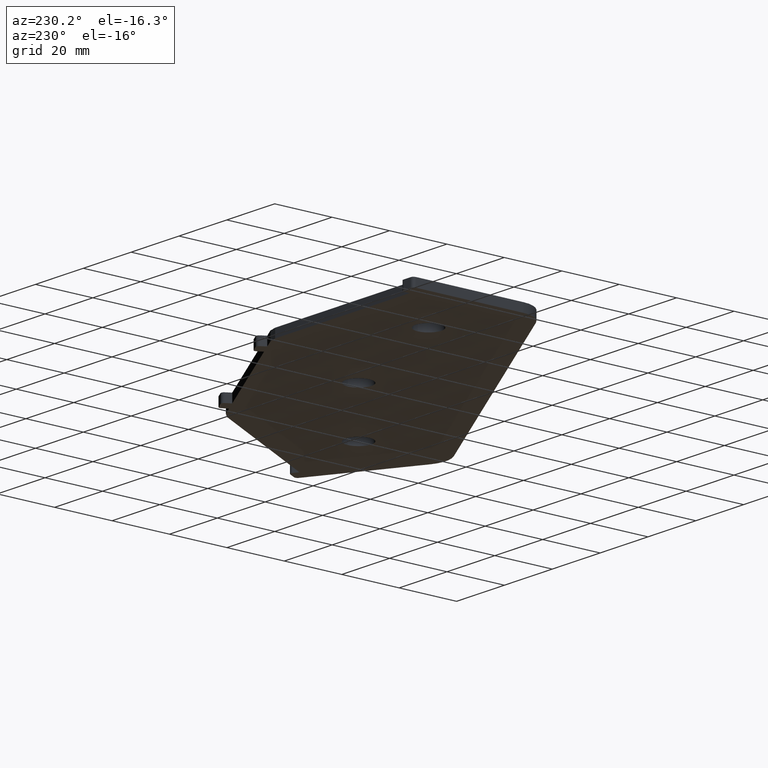
[diagram: clean part render]
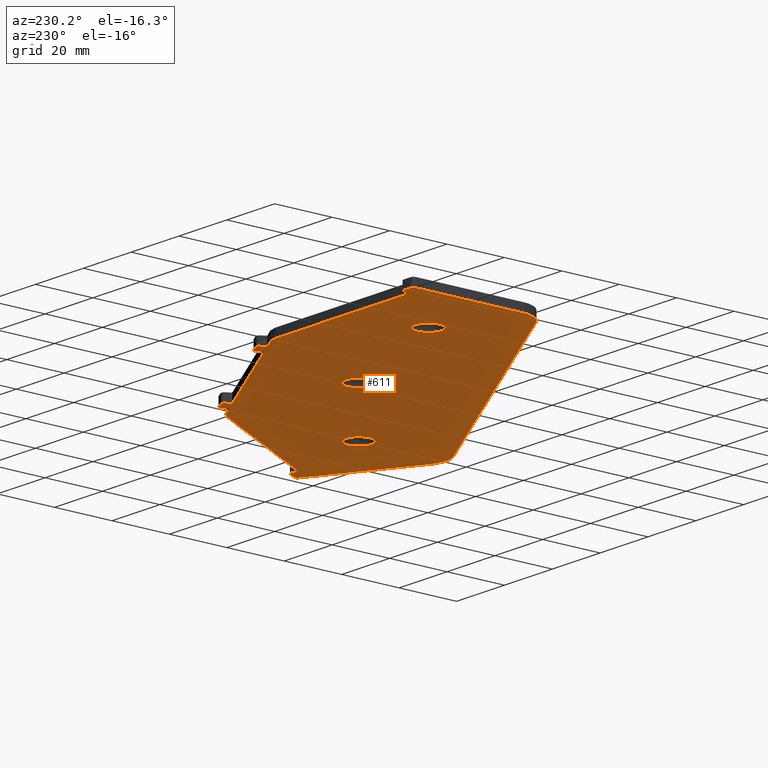
[diagram: same view with one face highlighted and labeled with its STEP entity id]
A machine part, auxiliary view. The second image highlights one B-rep face of the part: STEP entity #611.
In plain terms, the highlighted planar face has unit normal (0, 0, 1).
Its self-contained STEP definition (entity closure, byte-faithful):
#1 = CARTESIAN_POINT ( 'NONE',  ( 682.3301320677627473, 1004.780071044746705, 1257.499999999999545 ) ) ;
#17 = DIRECTION ( 'NONE',  ( -0.5000000000000001110, -0.8660254037844384856, 0.000000000000000000 ) ) ;
#19 = CARTESIAN_POINT ( 'NONE',  ( 530.0000000000000000, 1097.305264068950919, 1257.499999999999545 ) ) ;
#27 = DIRECTION ( 'NONE',  ( 0.000000000000000000, -1.000000000000000000, 0.000000000000000000 ) ) ;
#31 = CARTESIAN_POINT ( 'NONE',  ( 684.3301320677630883, 1001.315969429609254, 1257.499999999999545 ) ) ;
#36 = VECTOR ( 'NONE', #130, 999.9999999999998863 ) ;
#39 = DIRECTION ( 'NONE',  ( 1.000000000000000000, 0.000000000000000000, 0.000000000000000000 ) ) ;
#49 = LINE ( 'NONE', #275, #973 ) ;
#52 = DIRECTION ( 'NONE',  ( -0.000000000000000000, -0.000000000000000000, -1.000000000000000000 ) ) ;
#56 = EDGE_CURVE ( 'NONE', #376, #626, #674, .T. ) ;
#63 = EDGE_CURVE ( 'NONE', #302, #1086, #1164, .T. ) ;
#64 = VECTOR ( 'NONE', #664, 1000.000000000000000 ) ;
#66 = VERTEX_POINT ( 'NONE', #1088 ) ;
#67 = AXIS2_PLACEMENT_3D ( 'NONE', #439, #1239, #1211 ) ;
#68 = CIRCLE ( 'NONE', #892, 4.499999993611059068 ) ;
#69 = CIRCLE ( 'NONE', #415, 1.000000000000000888 ) ;
#74 = CARTESIAN_POINT ( 'NONE',  ( 595.8448516666264823, 1090.126883144996782, 1257.499999999999545 ) ) ;
#80 = CARTESIAN_POINT ( 'NONE',  ( 597.9429278779797414, 1087.760857741212249, 1257.499999999999545 ) ) ;
#91 = DIRECTION ( 'NONE',  ( -1.000000000000000000, 0.000000000000000000, 0.000000000000000000 ) ) ;
#103 = CARTESIAN_POINT ( 'NONE',  ( 586.2509217650526807, 1091.305264068951146, 1257.499999999999545 ) ) ;
#127 = DIRECTION ( 'NONE',  ( -0.8660254037843816421, -0.5000000000000985878, 0.000000000000000000 ) ) ;
#129 = FACE_OUTER_BOUND ( 'NONE', #1185, .T. ) ;
#130 = DIRECTION ( 'NONE',  ( 0.8660254037844367092, -0.5000000000000034417, 0.000000000000000000 ) ) ;
#137 = VECTOR ( 'NONE', #744, 1000.000000000000000 ) ;
#140 = CARTESIAN_POINT ( 'NONE',  ( 526.0000000000000000, 1093.305264068951146, 1257.499999999999545 ) ) ;
#141 = CIRCLE ( 'NONE', #1370, 1.000000000000000888 ) ;
#144 = ORIENTED_EDGE ( 'NONE', *, *, #391, .F. ) ;
#153 = CARTESIAN_POINT ( 'NONE',  ( 682.6961574715469396, 1006.146096448531353, 1257.499999999999545 ) ) ;
#157 = ORIENTED_EDGE ( 'NONE', *, *, #884, .T. ) ;
#163 = CIRCLE ( 'NONE', #344, 1.000000000000000888 ) ;
#172 = DIRECTION ( 'NONE',  ( -0.5000000000000985878, 0.8660254037843816421, 0.000000000000000000 ) ) ;
#176 = DIRECTION ( 'NONE',  ( 1.000000000000000000, 0.000000000000000000, 0.000000000000000000 ) ) ;
#178 = VERTEX_POINT ( 'NONE', #886 ) ;
#181 = CARTESIAN_POINT ( 'NONE',  ( 646.5211730151861502, 1059.714194834486307, 1257.499999999999545 ) ) ;
#183 = CIRCLE ( 'NONE', #1218, 1.000000000000000888 ) ;
#186 = ORIENTED_EDGE ( 'NONE', *, *, #56, .T. ) ;
#190 = LINE ( 'NONE', #206, #1394 ) ;
#191 = VERTEX_POINT ( 'NONE', #231 ) ;
#192 = EDGE_CURVE ( 'NONE', #516, #1436, #1100, .T. ) ;
#196 = ORIENTED_EDGE ( 'NONE', *, *, #1123, .T. ) ;
#198 = VECTOR ( 'NONE', #389, 1000.000000000000000 ) ;
#201 = EDGE_CURVE ( 'NONE', #678, #796, #564, .T. ) ;
#203 = VECTOR ( 'NONE', #950, 1000.000000000000000 ) ;
#206 = CARTESIAN_POINT ( 'NONE',  ( 525.0000000000000000, 1050.200139638875044, 1257.499999999999545 ) ) ;
#208 = ORIENTED_EDGE ( 'NONE', *, *, #969, .F. ) ;
#209 = DIRECTION ( 'NONE',  ( -0.5000000000000001110, -0.8660254037844385966, 0.000000000000000000 ) ) ;
#215 = DIRECTION ( 'NONE',  ( 0.000000000000000000, 0.000000000000000000, 1.000000000000000000 ) ) ;
#216 = DIRECTION ( 'NONE',  ( 0.000000000000000000, 0.000000000000000000, 1.000000000000000000 ) ) ;
#217 = CARTESIAN_POINT ( 'NONE',  ( 595.3448516666264823, 1089.260857741212476, 1257.499999999999545 ) ) ;
#219 = CARTESIAN_POINT ( 'NONE',  ( 647.3858955872256047, 1011.305264102386786, 1257.499999999999545 ) ) ;
#231 = CARTESIAN_POINT ( 'NONE',  ( 642.8858955936145776, 1011.305264102386786, 1257.499999999999545 ) ) ;
#232 = VERTEX_POINT ( 'NONE', #926 ) ;
#233 = LINE ( 'NONE', #19, #1393 ) ;
#235 = CARTESIAN_POINT ( 'NONE',  ( 680.0980812601939078, 1004.646096448531125, 1257.499999999999545 ) ) ;
#236 = CARTESIAN_POINT ( 'NONE',  ( 598.9429278779797414, 1087.760857741212249, 1257.499999999999545 ) ) ;
#237 = DIRECTION ( 'NONE',  ( -1.000000000000000000, 0.000000000000000000, 0.000000000000000000 ) ) ;
#240 = CARTESIAN_POINT ( 'NONE',  ( 649.8513000341085899, 1055.482144026917695, 1257.499999999999545 ) ) ;
#242 = EDGE_CURVE ( 'NONE', #1101, #1018, #1377, .T. ) ;
#247 = CARTESIAN_POINT ( 'NONE',  ( 589.1486992439198502, 1090.528806933643637, 1257.499999999999545 ) ) ;
#248 = CARTESIAN_POINT ( 'NONE',  ( 647.0211730151862639, 1060.580220238270840, 1257.499999999999545 ) ) ;
#251 = VERTEX_POINT ( 'NONE', #74 ) ;
#263 = DIRECTION ( 'NONE',  ( 0.000000000000000000, 0.000000000000000000, 1.000000000000000000 ) ) ;
#269 = ORIENTED_EDGE ( 'NONE', *, *, #714, .F. ) ;
#271 = DIRECTION ( 'NONE',  ( 1.000000000000000000, 0.000000000000000000, 0.000000000000000000 ) ) ;
#272 = CARTESIAN_POINT ( 'NONE',  ( 682.5980812601943626, 1000.315969429609140, 1257.499999999999545 ) ) ;
#275 = CARTESIAN_POINT ( 'NONE',  ( 646.9999992780285538, 979.7634072145713162, 1257.499999999999545 ) ) ;
#278 = CARTESIAN_POINT ( 'NONE',  ( 586.2509217650526807, 1091.305264068951146, 1257.499999999999545 ) ) ;
#284 = CARTESIAN_POINT ( 'NONE',  ( 641.9999992780285538, 982.6501585605194578, 1257.499999999999545 ) ) ;
#287 = EDGE_CURVE ( 'NONE', #796, #530, #985, .T. ) ;
#289 = DIRECTION ( 'NONE',  ( 0.000000000000000000, 0.000000000000000000, 1.000000000000000000 ) ) ;
#294 = ORIENTED_EDGE ( 'NONE', *, *, #504, .T. ) ;
#297 = CARTESIAN_POINT ( 'NONE',  ( 529.0000000000000000, 1093.305264068951146, 1257.499999999999545 ) ) ;
#302 = VERTEX_POINT ( 'NONE', #767 ) ;
#310 = VERTEX_POINT ( 'NONE', #236 ) ;
#314 = CARTESIAN_POINT ( 'NONE',  ( 525.0000000000000000, 1091.305264068951146, 1257.499999999999545 ) ) ;
#319 = CIRCLE ( 'NONE', #890, 4.499999993602288306 ) ;
#338 = CARTESIAN_POINT ( 'NONE',  ( 526.0000000000000000, 1094.305264068950919, 1257.499999999999545 ) ) ;
#342 = ORIENTED_EDGE ( 'NONE', *, *, #882, .T. ) ;
#344 = AXIS2_PLACEMENT_3D ( 'NONE', #297, #427, #1291 ) ;
#347 = ORIENTED_EDGE ( 'NONE', *, *, #800, .T. ) ;
#349 = CARTESIAN_POINT ( 'NONE',  ( 598.4429278779798551, 1088.626883144996782, 1257.499999999999545 ) ) ;
#356 = PLANE ( 'NONE',  #709 ) ;
#357 = EDGE_CURVE ( 'NONE', #1133, #568, #1336, .T. ) ;
#362 = LINE ( 'NONE', #895, #394 ) ;
#372 = CIRCLE ( 'NONE', #1168, 10.00000000000000888 ) ;
#374 = CIRCLE ( 'NONE', #1395, 1.000000000000000888 ) ;
#376 = VERTEX_POINT ( 'NONE', #572 ) ;
#377 = DIRECTION ( 'NONE',  ( -1.000000000000000000, 0.000000000000000000, 0.000000000000000000 ) ) ;
#380 = ORIENTED_EDGE ( 'NONE', *, *, #1243, .F. ) ;
#384 = CARTESIAN_POINT ( 'NONE',  ( 530.0000000000000000, 1094.305264068950919, 1257.499999999999545 ) ) ;
#386 = CARTESIAN_POINT ( 'NONE',  ( 646.1551476114018442, 1061.080220238270840, 1257.499999999999545 ) ) ;
#387 = DIRECTION ( 'NONE',  ( -1.000000000000000000, 0.000000000000000000, 0.000000000000000000 ) ) ;
#389 = DIRECTION ( 'NONE',  ( 1.000000000000000000, 0.000000000000000000, -0.000000000000000000 ) ) ;
#391 = EDGE_CURVE ( 'NONE', #232, #1139, #49, .T. ) ;
#394 = VECTOR ( 'NONE', #1255, 999.9999999999998863 ) ;
#396 = CARTESIAN_POINT ( 'NONE',  ( 593.4788262628420625, 1088.028806933643637, 1257.499999999999545 ) ) ;
#401 = CARTESIAN_POINT ( 'NONE',  ( 647.3858955872256047, 1011.305264102386786, 1257.499999999999545 ) ) ;
#408 = EDGE_CURVE ( 'NONE', #251, #605, #362, .T. ) ;
#415 = AXIS2_PLACEMENT_3D ( 'NONE', #1, #885, #237 ) ;
#419 = CARTESIAN_POINT ( 'NONE',  ( 642.1910459962639379, 1062.214194834486307, 1257.499999999999545 ) ) ;
#422 = CARTESIAN_POINT ( 'NONE',  ( 529.0000000000000000, 1094.305264068950919, 1257.499999999999545 ) ) ;
#427 = DIRECTION ( 'NONE',  ( -0.000000000000000000, -0.000000000000000000, -1.000000000000000000 ) ) ;
#429 = ORIENTED_EDGE ( 'NONE', *, *, #63, .T. ) ;
#430 = EDGE_CURVE ( 'NONE', #584, #888, #1182, .T. ) ;
#439 = CARTESIAN_POINT ( 'NONE',  ( 643.0570714000484713, 1061.714194834486307, 1257.499999999999545 ) ) ;
#451 = CARTESIAN_POINT ( 'NONE',  ( 600.8089532817640475, 1090.724959356349927, 1257.499999999999545 ) ) ;
#456 = AXIS2_PLACEMENT_3D ( 'NONE', #1113, #910, #801 ) ;
#463 = FACE_BOUND ( 'NONE', #923, .T. ) ;
#467 = ORIENTED_EDGE ( 'NONE', *, *, #942, .T. ) ;
#483 = LINE ( 'NONE', #153, #1343 ) ;
#487 = ORIENTED_EDGE ( 'NONE', *, *, #1136, .T. ) ;
#492 = ORIENTED_EDGE ( 'NONE', *, *, #242, .T. ) ;
#497 = VERTEX_POINT ( 'NONE', #247 ) ;
#503 = ORIENTED_EDGE ( 'NONE', *, *, #1077, .T. ) ;
#504 = EDGE_CURVE ( 'NONE', #672, #811, #233, .T. ) ;
#505 = VECTOR ( 'NONE', #91, 1000.000000000000000 ) ;
#513 = CARTESIAN_POINT ( 'NONE',  ( 645.6551476114017305, 1060.214194834486307, 1257.499999999999545 ) ) ;
#516 = VERTEX_POINT ( 'NONE', #979 ) ;
#518 = DIRECTION ( 'NONE',  ( -0.8660254037844385966, 0.5000000000000001110, 0.000000000000000000 ) ) ;
#519 = AXIS2_PLACEMENT_3D ( 'NONE', #758, #216, #652 ) ;
#523 = CIRCLE ( 'NONE', #1338, 1.000000000000000888 ) ;
#529 = DIRECTION ( 'NONE',  ( -0.000000000000000000, -0.000000000000000000, -1.000000000000000000 ) ) ;
#530 = VERTEX_POINT ( 'NONE', #566 ) ;
#539 = CARTESIAN_POINT ( 'NONE',  ( 645.6551476114017305, 1060.214194834486307, 1257.499999999999545 ) ) ;
#544 = CIRCLE ( 'NONE', #841, 1.000000000000000888 ) ;
#547 = AXIS2_PLACEMENT_3D ( 'NONE', #513, #586, #39 ) ;
#553 = DIRECTION ( 'NONE',  ( 1.000000000000000000, 0.000000000000000000, 0.000000000000000000 ) ) ;
#555 = EDGE_CURVE ( 'NONE', #678, #376, #799, .T. ) ;
#564 = LINE ( 'NONE', #1000, #1090 ) ;
#565 = VERTEX_POINT ( 'NONE', #240 ) ;
#566 = CARTESIAN_POINT ( 'NONE',  ( 597.8089532817642748, 1085.528806933643637, 1257.499999999999545 ) ) ;
#568 = VERTEX_POINT ( 'NONE', #899 ) ;
#572 = CARTESIAN_POINT ( 'NONE',  ( 643.5570714000484713, 1062.580220238270840, 1257.499999999999545 ) ) ;
#584 = VERTEX_POINT ( 'NONE', #1203 ) ;
#585 = CARTESIAN_POINT ( 'NONE',  ( 604.4999996316416855, 1047.024713385834275, 1257.499999999999545 ) ) ;
#586 = DIRECTION ( 'NONE',  ( -0.000000000000000000, -0.000000000000000000, -1.000000000000000000 ) ) ;
#597 = ORIENTED_EDGE ( 'NONE', *, *, #287, .F. ) ;
#605 = VERTEX_POINT ( 'NONE', #349 ) ;
#606 = EDGE_CURVE ( 'NONE', #66, #1101, #544, .T. ) ;
#608 = ORIENTED_EDGE ( 'NONE', *, *, #1254, .F. ) ;
#610 = VECTOR ( 'NONE', #209, 1000.000000000000000 ) ;
#611 = ADVANCED_FACE ( 'NONE', ( #129, #1002, #463, #1348 ), #356, .F. ) ;
#618 = VECTOR ( 'NONE', #671, 1000.000000000000000 ) ;
#620 = CARTESIAN_POINT ( 'NONE',  ( 649.8513000341085899, 1055.482144026917695, 1257.499999999999545 ) ) ;
#624 = EDGE_CURVE ( 'NONE', #178, #1139, #821, .T. ) ;
#625 = LINE ( 'NONE', #620, #203 ) ;
#626 = VERTEX_POINT ( 'NONE', #386 ) ;
#628 = VERTEX_POINT ( 'NONE', #1266 ) ;
#631 = CARTESIAN_POINT ( 'NONE',  ( 552.1231011516375702, 1066.305264068958422, 1257.499999999999545 ) ) ;
#636 = CARTESIAN_POINT ( 'NONE',  ( 596.4788262628418352, 1093.224959356349927, 1257.499999999999545 ) ) ;
#645 = EDGE_CURVE ( 'NONE', #1436, #681, #693, .T. ) ;
#651 = DIRECTION ( 'NONE',  ( 1.000000000000000000, 0.000000000000000000, -0.000000000000000000 ) ) ;
#652 = DIRECTION ( 'NONE',  ( 1.000000000000000000, 0.000000000000000000, 0.000000000000000000 ) ) ;
#660 = EDGE_CURVE ( 'NONE', #568, #1133, #319, .T. ) ;
#664 = DIRECTION ( 'NONE',  ( -0.8660254037844385966, 0.5000000000000001110, 0.000000000000000000 ) ) ;
#665 = CARTESIAN_POINT ( 'NONE',  ( 599.9999996380394123, 1047.024713385834275, 1257.499999999999545 ) ) ;
#671 = DIRECTION ( 'NONE',  ( -0.5000000000000001110, -0.8660254037844385966, 0.000000000000000000 ) ) ;
#672 = VERTEX_POINT ( 'NONE', #747 ) ;
#673 = DIRECTION ( 'NONE',  ( -0.000000000000000000, -0.000000000000000000, -1.000000000000000000 ) ) ;
#674 = LINE ( 'NONE', #248, #36 ) ;
#677 = LINE ( 'NONE', #1332, #687 ) ;
#678 = VERTEX_POINT ( 'NONE', #419 ) ;
#681 = VERTEX_POINT ( 'NONE', #1408 ) ;
#684 = VECTOR ( 'NONE', #1403, 1000.000000000000000 ) ;
#686 = DIRECTION ( 'NONE',  ( 0.8660254037844392627, 0.4999999999999989453, 0.000000000000000000 ) ) ;
#687 = VECTOR ( 'NONE', #986, 999.9999999999998863 ) ;
#689 = ORIENTED_EDGE ( 'NONE', *, *, #192, .F. ) ;
#690 = CARTESIAN_POINT ( 'NONE',  ( 683.8301320677629747, 1002.181994833393674, 1257.499999999999545 ) ) ;
#693 = LINE ( 'NONE', #272, #797 ) ;
#705 = DIRECTION ( 'NONE',  ( 0.000000000000000000, -0.000000000000000000, -1.000000000000000000 ) ) ;
#709 = AXIS2_PLACEMENT_3D ( 'NONE', #785, #215, #651 ) ;
#713 = ORIENTED_EDGE ( 'NONE', *, *, #357, .T. ) ;
#714 = EDGE_CURVE ( 'NONE', #497, #809, #1186, .T. ) ;
#719 = DIRECTION ( 'NONE',  ( 1.000000000000000000, 0.000000000000000000, 0.000000000000000000 ) ) ;
#731 = CARTESIAN_POINT ( 'NONE',  ( 589.1486992439198502, 1090.528806933643637, 1257.499999999999545 ) ) ;
#735 = LINE ( 'NONE', #103, #505 ) ;
#736 = VERTEX_POINT ( 'NONE', #284 ) ;
#737 = CARTESIAN_POINT ( 'NONE',  ( 646.6551476114017305, 1060.214194834486307, 1257.499999999999545 ) ) ;
#738 = DIRECTION ( 'NONE',  ( 1.000000000000000000, 0.000000000000000000, 0.000000000000000000 ) ) ;
#739 = ORIENTED_EDGE ( 'NONE', *, *, #1296, .T. ) ;
#744 = DIRECTION ( 'NONE',  ( 0.000000000000000000, -1.000000000000000000, 0.000000000000000000 ) ) ;
#746 = ORIENTED_EDGE ( 'NONE', *, *, #624, .T. ) ;
#747 = CARTESIAN_POINT ( 'NONE',  ( 530.0000000000000000, 1093.305264068951146, 1257.499999999999545 ) ) ;
#758 = CARTESIAN_POINT ( 'NONE',  ( 552.1231011516375702, 1066.305264068958422, 1257.499999999999545 ) ) ;
#762 = CARTESIAN_POINT ( 'NONE',  ( 648.5211730151859228, 1063.178296449623758, 1257.499999999999545 ) ) ;
#767 = CARTESIAN_POINT ( 'NONE',  ( 556.6231011452485973, 1066.305264068958422, 1257.499999999999545 ) ) ;
#772 = ORIENTED_EDGE ( 'NONE', *, *, #606, .T. ) ;
#779 = ORIENTED_EDGE ( 'NONE', *, *, #1289, .T. ) ;
#785 = CARTESIAN_POINT ( 'NONE',  ( 0.000000000000000000, 0.000000000000000000, 1257.499999999999545 ) ) ;
#791 = ORIENTED_EDGE ( 'NONE', *, *, #555, .T. ) ;
#796 = VERTEX_POINT ( 'NONE', #1392 ) ;
#797 = VECTOR ( 'NONE', #172, 1000.000000000000114 ) ;
#799 = CIRCLE ( 'NONE', #67, 1.000000000000000888 ) ;
#800 = EDGE_CURVE ( 'NONE', #1053, #816, #372, .T. ) ;
#801 = DIRECTION ( 'NONE',  ( 1.000000000000000000, 0.000000000000000000, 0.000000000000000000 ) ) ;
#809 = VERTEX_POINT ( 'NONE', #278 ) ;
#811 = VERTEX_POINT ( 'NONE', #1397 ) ;
#816 = VERTEX_POINT ( 'NONE', #1267 ) ;
#817 = EDGE_CURVE ( 'NONE', #191, #1329, #68, .T. ) ;
#821 = CIRCLE ( 'NONE', #1250, 1.000000000000000888 ) ;
#841 = AXIS2_PLACEMENT_3D ( 'NONE', #140, #673, #553 ) ;
#843 = ORIENTED_EDGE ( 'NONE', *, *, #817, .T. ) ;
#847 = CARTESIAN_POINT ( 'NONE',  ( 598.8089532817641611, 1087.260857741212476, 1257.499999999999545 ) ) ;
#849 = CARTESIAN_POINT ( 'NONE',  ( 646.9999992780285538, 991.3104125983638824, 1257.499999999999545 ) ) ;
#854 = LINE ( 'NONE', #314, #137 ) ;
#873 = VERTEX_POINT ( 'NONE', #181 ) ;
#876 = LINE ( 'NONE', #762, #1253 ) ;
#878 = ORIENTED_EDGE ( 'NONE', *, *, #645, .F. ) ;
#882 = EDGE_CURVE ( 'NONE', #310, #1359, #1191, .T. ) ;
#883 = CARTESIAN_POINT ( 'NONE',  ( 649.8513000341085899, 1055.482144026917695, 1257.499999999999545 ) ) ;
#884 = EDGE_CURVE ( 'NONE', #628, #178, #183, .T. ) ;
#885 = DIRECTION ( 'NONE',  ( 0.000000000000000000, -0.000000000000000000, -1.000000000000000000 ) ) ;
#886 = CARTESIAN_POINT ( 'NONE',  ( 684.8301320677629747, 1002.181994833393674, 1257.499999999999545 ) ) ;
#888 = VERTEX_POINT ( 'NONE', #396 ) ;
#890 = AXIS2_PLACEMENT_3D ( 'NONE', #585, #1399, #719 ) ;
#892 = AXIS2_PLACEMENT_3D ( 'NONE', #401, #289, #271 ) ;
#895 = CARTESIAN_POINT ( 'NONE',  ( 599.3089532817641611, 1088.126883144996782, 1257.499999999999545 ) ) ;
#897 = CARTESIAN_POINT ( 'NONE',  ( 685.2942336829000851, 1007.646096448531694, 1257.499999999999545 ) ) ;
#899 = CARTESIAN_POINT ( 'NONE',  ( 608.9999996252439587, 1047.024713385834275, 1257.499999999999545 ) ) ;
#910 = DIRECTION ( 'NONE',  ( 0.000000000000000000, 0.000000000000000000, 1.000000000000000000 ) ) ;
#911 = CARTESIAN_POINT ( 'NONE',  ( 649.8513000341085899, 1055.482144026917695, 1257.499999999999545 ) ) ;
#923 = EDGE_LOOP ( 'NONE', ( #429, #779 ) ) ;
#926 = CARTESIAN_POINT ( 'NONE',  ( 651.9999992780285538, 982.6501585605194578, 1257.499999999999545 ) ) ;
#927 = ORIENTED_EDGE ( 'NONE', *, *, #1323, .F. ) ;
#934 = CARTESIAN_POINT ( 'NONE',  ( 597.9429278779797414, 1087.760857741212249, 1257.499999999999545 ) ) ;
#940 = ORIENTED_EDGE ( 'NONE', *, *, #1054, .T. ) ;
#941 = CARTESIAN_POINT ( 'NONE',  ( 683.8301320677629747, 1002.181994833393674, 1257.499999999999545 ) ) ;
#942 = EDGE_CURVE ( 'NONE', #232, #736, #1410, .T. ) ;
#945 = DIRECTION ( 'NONE',  ( -0.000000000000000000, -0.000000000000000000, -1.000000000000000000 ) ) ;
#950 = DIRECTION ( 'NONE',  ( -0.8660254037844385966, 0.5000000000000001110, 0.000000000000000000 ) ) ;
#952 = EDGE_CURVE ( 'NONE', #809, #811, #735, .T. ) ;
#955 = DIRECTION ( 'NONE',  ( 1.000000000000000000, 0.000000000000000000, 0.000000000000000000 ) ) ;
#969 = EDGE_CURVE ( 'NONE', #1053, #736, #190, .T. ) ;
#973 = VECTOR ( 'NONE', #686, 1000.000000000000000 ) ;
#976 = DIRECTION ( 'NONE',  ( -0.000000000000000000, -0.000000000000000000, -1.000000000000000000 ) ) ;
#979 = CARTESIAN_POINT ( 'NONE',  ( 681.8301320677625199, 1005.646096448531239, 1257.499999999999545 ) ) ;
#982 = AXIS2_PLACEMENT_3D ( 'NONE', #219, #1236, #1219 ) ;
#985 = LINE ( 'NONE', #883, #64 ) ;
#986 = DIRECTION ( 'NONE',  ( -0.7071067811865660024, 0.7071067811865291430, 0.000000000000000000 ) ) ;
#990 = EDGE_CURVE ( 'NONE', #1018, #672, #163, .T. ) ;
#992 = CARTESIAN_POINT ( 'NONE',  ( 547.6231011580264294, 1066.305264068958422, 1257.499999999999545 ) ) ;
#996 = EDGE_CURVE ( 'NONE', #605, #310, #523, .T. ) ;
#1000 = CARTESIAN_POINT ( 'NONE',  ( 644.1910459962637105, 1065.678296449623531, 1257.499999999999545 ) ) ;
#1002 = FACE_BOUND ( 'NONE', #1341, .T. ) ;
#1014 = ORIENTED_EDGE ( 'NONE', *, *, #660, .T. ) ;
#1016 = DIRECTION ( 'NONE',  ( -0.5000000000000001110, -0.8660254037844384856, 0.000000000000000000 ) ) ;
#1018 = VERTEX_POINT ( 'NONE', #422 ) ;
#1020 = EDGE_CURVE ( 'NONE', #66, #816, #854, .T. ) ;
#1028 = EDGE_LOOP ( 'NONE', ( #1014, #713 ) ) ;
#1041 = VERTEX_POINT ( 'NONE', #1318 ) ;
#1052 = VECTOR ( 'NONE', #518, 1000.000000000000000 ) ;
#1053 = VERTEX_POINT ( 'NONE', #1058 ) ;
#1054 = EDGE_CURVE ( 'NONE', #626, #1309, #374, .T. ) ;
#1055 = DIRECTION ( 'NONE',  ( 1.000000000000000000, 0.000000000000000000, 0.000000000000000000 ) ) ;
#1058 = CARTESIAN_POINT ( 'NONE',  ( 530.0000000000000000, 1047.313388292927129, 1257.499999999999545 ) ) ;
#1077 = EDGE_CURVE ( 'NONE', #873, #1181, #876, .T. ) ;
#1084 = EDGE_CURVE ( 'NONE', #681, #565, #677, .T. ) ;
#1086 = VERTEX_POINT ( 'NONE', #992 ) ;
#1088 = CARTESIAN_POINT ( 'NONE',  ( 525.0000000000000000, 1093.305264068951146, 1257.499999999999545 ) ) ;
#1089 = DIRECTION ( 'NONE',  ( 1.000000000000000000, 0.000000000000000000, 0.000000000000000000 ) ) ;
#1090 = VECTOR ( 'NONE', #17, 1000.000000000000227 ) ;
#1099 = LINE ( 'NONE', #451, #618 ) ;
#1100 = LINE ( 'NONE', #897, #1409 ) ;
#1101 = VERTEX_POINT ( 'NONE', #338 ) ;
#1103 = EDGE_CURVE ( 'NONE', #1329, #191, #1223, .T. ) ;
#1110 = ORIENTED_EDGE ( 'NONE', *, *, #1020, .F. ) ;
#1113 = CARTESIAN_POINT ( 'NONE',  ( 604.4999996316416855, 1047.024713385834275, 1257.499999999999545 ) ) ;
#1115 = CARTESIAN_POINT ( 'NONE',  ( 645.5211730151863776, 1057.982144026917922, 1257.499999999999545 ) ) ;
#1122 = AXIS2_PLACEMENT_3D ( 'NONE', #631, #263, #1300 ) ;
#1123 = EDGE_CURVE ( 'NONE', #516, #1041, #69, .T. ) ;
#1129 = DIRECTION ( 'NONE',  ( 0.000000000000000000, -0.000000000000000000, -1.000000000000000000 ) ) ;
#1131 = ORIENTED_EDGE ( 'NONE', *, *, #996, .T. ) ;
#1133 = VERTEX_POINT ( 'NONE', #665 ) ;
#1136 = EDGE_CURVE ( 'NONE', #1359, #530, #1099, .T. ) ;
#1139 = VERTEX_POINT ( 'NONE', #31 ) ;
#1150 = CIRCLE ( 'NONE', #1122, 4.499999993611059068 ) ;
#1164 = CIRCLE ( 'NONE', #519, 4.499999993611059068 ) ;
#1165 = ORIENTED_EDGE ( 'NONE', *, *, #408, .T. ) ;
#1168 = AXIS2_PLACEMENT_3D ( 'NONE', #1286, #945, #176 ) ;
#1181 = VERTEX_POINT ( 'NONE', #1115 ) ;
#1182 = LINE ( 'NONE', #636, #610 ) ;
#1183 = DIRECTION ( 'NONE',  ( -0.5000000000000951461, 0.8660254037843836405, 0.000000000000000000 ) ) ;
#1185 = EDGE_LOOP ( 'NONE', ( #144, #467, #208, #347, #1110, #772, #492, #1347, #294, #1422, #269, #608, #1229, #1375, #1165, #1131, #342, #487, #597, #1415, #791, #186, #940, #739, #503, #380, #1306, #878, #689, #196, #927, #157, #746 ) ) ;
#1186 = LINE ( 'NONE', #731, #684 ) ;
#1189 = DIRECTION ( 'NONE',  ( -0.000000000000000000, -0.000000000000000000, -1.000000000000000000 ) ) ;
#1191 = CIRCLE ( 'NONE', #1293, 1.000000000000000888 ) ;
#1192 = CIRCLE ( 'NONE', #547, 1.000000000000000888 ) ;
#1203 = CARTESIAN_POINT ( 'NONE',  ( 594.4788262628419488, 1089.760857741212249, 1257.499999999999545 ) ) ;
#1211 = DIRECTION ( 'NONE',  ( 1.000000000000000000, 0.000000000000000000, 0.000000000000000000 ) ) ;
#1213 = ORIENTED_EDGE ( 'NONE', *, *, #1103, .T. ) ;
#1218 = AXIS2_PLACEMENT_3D ( 'NONE', #941, #705, #387 ) ;
#1219 = DIRECTION ( 'NONE',  ( 1.000000000000000000, 0.000000000000000000, 0.000000000000000000 ) ) ;
#1223 = CIRCLE ( 'NONE', #982, 4.499999993611059068 ) ;
#1229 = ORIENTED_EDGE ( 'NONE', *, *, #430, .F. ) ;
#1236 = DIRECTION ( 'NONE',  ( 0.000000000000000000, 0.000000000000000000, 1.000000000000000000 ) ) ;
#1239 = DIRECTION ( 'NONE',  ( -0.000000000000000000, -0.000000000000000000, -1.000000000000000000 ) ) ;
#1243 = EDGE_CURVE ( 'NONE', #565, #1181, #1411, .T. ) ;
#1250 = AXIS2_PLACEMENT_3D ( 'NONE', #690, #1129, #377 ) ;
#1253 = VECTOR ( 'NONE', #1016, 1000.000000000000227 ) ;
#1254 = EDGE_CURVE ( 'NONE', #888, #497, #625, .T. ) ;
#1255 = DIRECTION ( 'NONE',  ( 0.8660254037844367092, -0.5000000000000034417, 0.000000000000000000 ) ) ;
#1256 = CARTESIAN_POINT ( 'NONE',  ( 651.8858955808366318, 1011.305264102386786, 1257.499999999999545 ) ) ;
#1266 = CARTESIAN_POINT ( 'NONE',  ( 684.6961574715472807, 1002.681994833393787, 1257.499999999999545 ) ) ;
#1267 = CARTESIAN_POINT ( 'NONE',  ( 525.0000000000000000, 1055.973642330771554, 1257.499999999999545 ) ) ;
#1277 = AXIS2_PLACEMENT_3D ( 'NONE', #849, #529, #955 ) ;
#1286 = CARTESIAN_POINT ( 'NONE',  ( 535.0000000000000000, 1055.973642330771554, 1257.499999999999545 ) ) ;
#1289 = EDGE_CURVE ( 'NONE', #1086, #302, #1150, .T. ) ;
#1291 = DIRECTION ( 'NONE',  ( 1.000000000000000000, 0.000000000000000000, 0.000000000000000000 ) ) ;
#1293 = AXIS2_PLACEMENT_3D ( 'NONE', #934, #52, #1055 ) ;
#1296 = EDGE_CURVE ( 'NONE', #1309, #873, #1192, .T. ) ;
#1300 = DIRECTION ( 'NONE',  ( 1.000000000000000000, 0.000000000000000000, 0.000000000000000000 ) ) ;
#1302 = DIRECTION ( 'NONE',  ( -0.000000000000000000, -0.000000000000000000, -1.000000000000000000 ) ) ;
#1306 = ORIENTED_EDGE ( 'NONE', *, *, #1084, .F. ) ;
#1309 = VERTEX_POINT ( 'NONE', #737 ) ;
#1318 = CARTESIAN_POINT ( 'NONE',  ( 683.1961574715471670, 1005.280071044746933, 1257.499999999999545 ) ) ;
#1323 = EDGE_CURVE ( 'NONE', #628, #1041, #483, .T. ) ;
#1329 = VERTEX_POINT ( 'NONE', #1256 ) ;
#1332 = CARTESIAN_POINT ( 'NONE',  ( 651.9726203776482407, 1053.360823683378158, 1257.499999999999545 ) ) ;
#1336 = CIRCLE ( 'NONE', #456, 4.499999993602288306 ) ;
#1338 = AXIS2_PLACEMENT_3D ( 'NONE', #80, #1302, #738 ) ;
#1341 = EDGE_LOOP ( 'NONE', ( #1213, #843 ) ) ;
#1343 = VECTOR ( 'NONE', #1183, 1000.000000000000000 ) ;
#1347 = ORIENTED_EDGE ( 'NONE', *, *, #990, .T. ) ;
#1348 = FACE_BOUND ( 'NONE', #1028, .T. ) ;
#1359 = VERTEX_POINT ( 'NONE', #847 ) ;
#1370 = AXIS2_PLACEMENT_3D ( 'NONE', #217, #1189, #1089 ) ;
#1375 = ORIENTED_EDGE ( 'NONE', *, *, #1404, .T. ) ;
#1377 = LINE ( 'NONE', #384, #198 ) ;
#1392 = CARTESIAN_POINT ( 'NONE',  ( 641.1910459962641653, 1060.482144026918149, 1257.499999999999545 ) ) ;
#1393 = VECTOR ( 'NONE', #27, 1000.000000000000000 ) ;
#1394 = VECTOR ( 'NONE', #1414, 1000.000000000000000 ) ;
#1395 = AXIS2_PLACEMENT_3D ( 'NONE', #539, #976, #1434 ) ;
#1397 = CARTESIAN_POINT ( 'NONE',  ( 530.0000000000000000, 1091.305264068951146, 1257.499999999999545 ) ) ;
#1399 = DIRECTION ( 'NONE',  ( 0.000000000000000000, 0.000000000000000000, 1.000000000000000000 ) ) ;
#1403 = DIRECTION ( 'NONE',  ( -0.9659258262890740854, 0.2588190451024992567, 0.000000000000000000 ) ) ;
#1404 = EDGE_CURVE ( 'NONE', #584, #251, #141, .T. ) ;
#1408 = CARTESIAN_POINT ( 'NONE',  ( 651.9726203776482407, 1053.360823683378158, 1257.499999999999545 ) ) ;
#1409 = VECTOR ( 'NONE', #127, 1000.000000000000114 ) ;
#1410 = CIRCLE ( 'NONE', #1277, 10.00000000000000888 ) ;
#1411 = LINE ( 'NONE', #911, #1052 ) ;
#1414 = DIRECTION ( 'NONE',  ( 0.8660254037844389297, -0.4999999999999995004, 0.000000000000000000 ) ) ;
#1415 = ORIENTED_EDGE ( 'NONE', *, *, #201, .F. ) ;
#1422 = ORIENTED_EDGE ( 'NONE', *, *, #952, .F. ) ;
#1434 = DIRECTION ( 'NONE',  ( 1.000000000000000000, 0.000000000000000000, 0.000000000000000000 ) ) ;
#1436 = VERTEX_POINT ( 'NONE', #235 ) ;